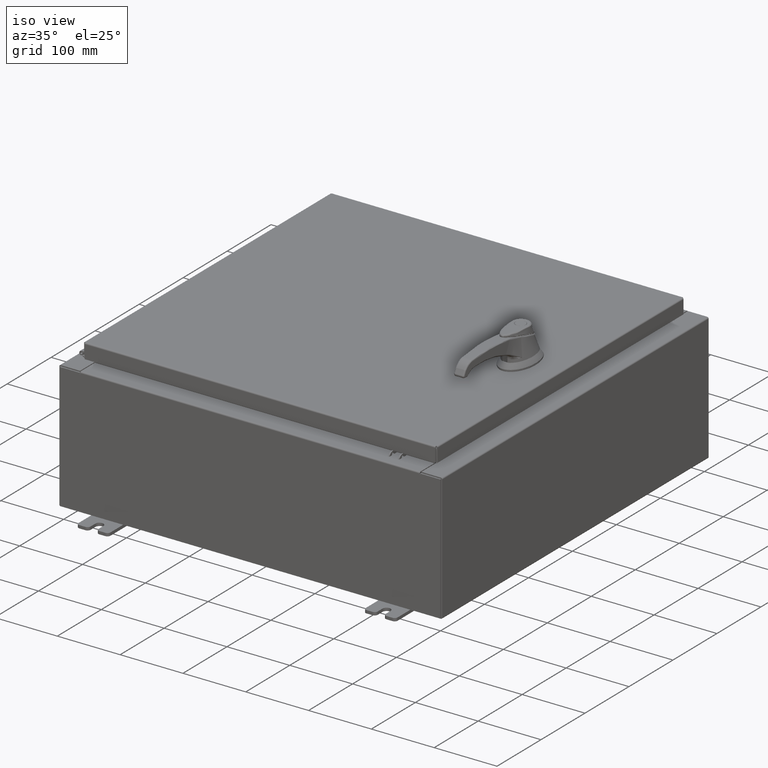
[diagram: clean part render]
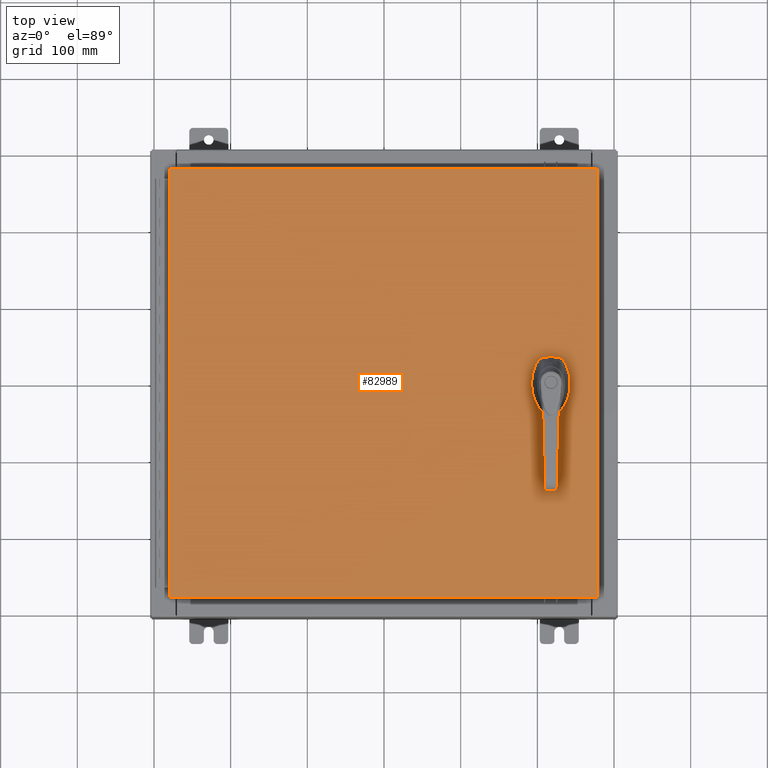
[diagram: tour spotlight — one face highlighted and labeled with its STEP entity id]
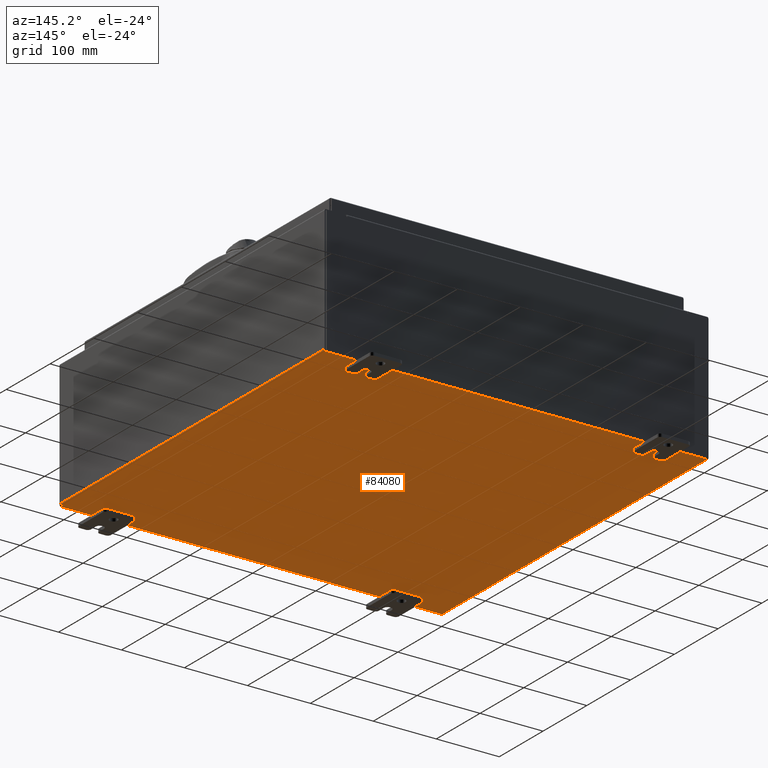
[diagram: tour spotlight — one face highlighted and labeled with its STEP entity id]
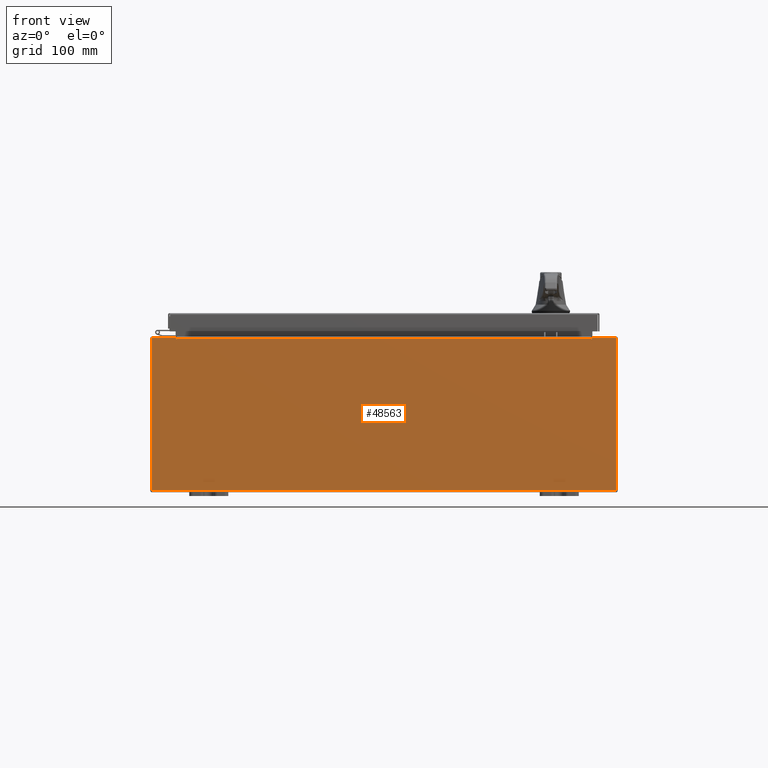
[diagram: tour spotlight — one face highlighted and labeled with its STEP entity id]
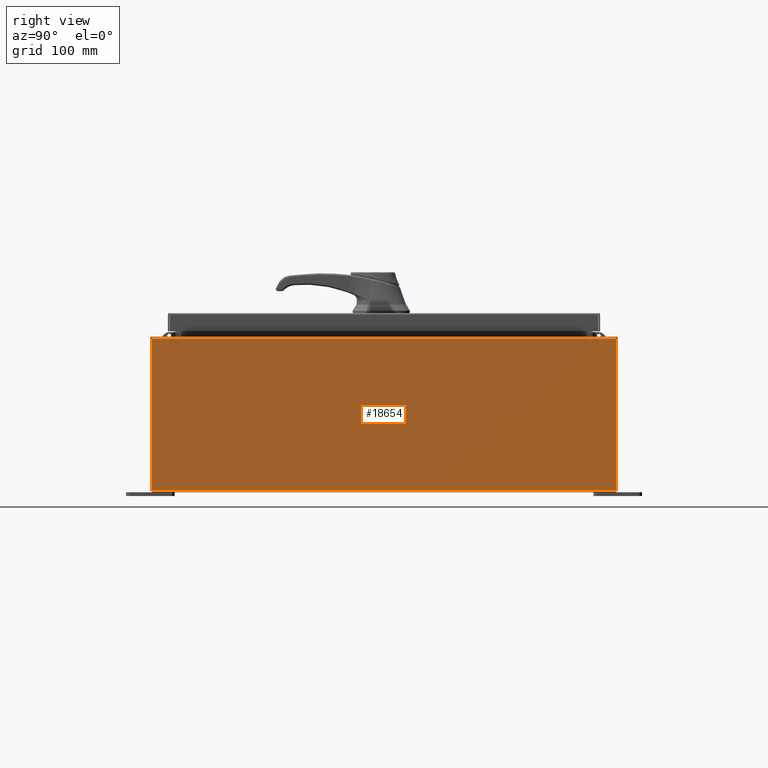
[diagram: tour spotlight — one face highlighted and labeled with its STEP entity id]
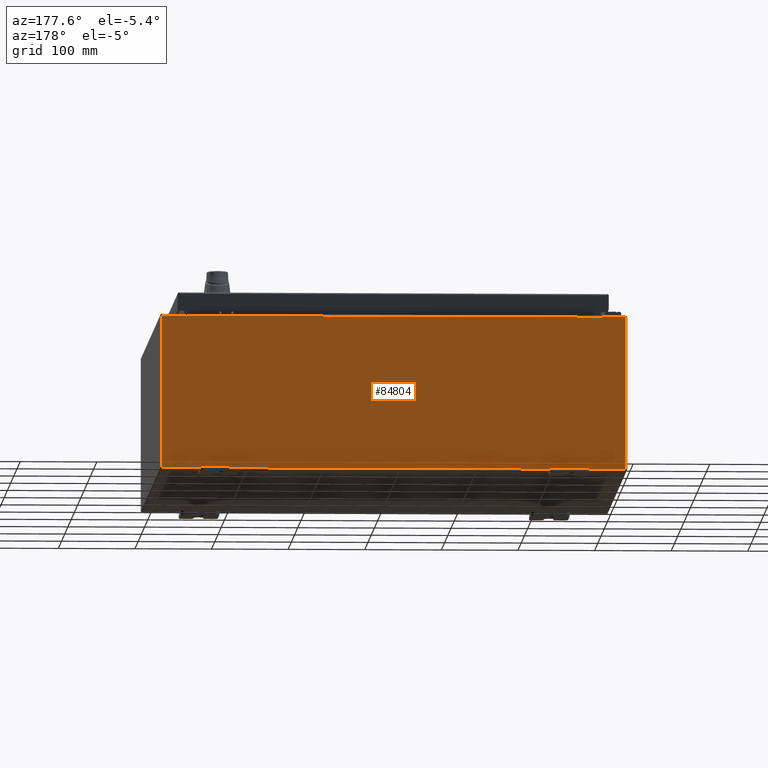
[diagram: tour spotlight — one face highlighted and labeled with its STEP entity id]
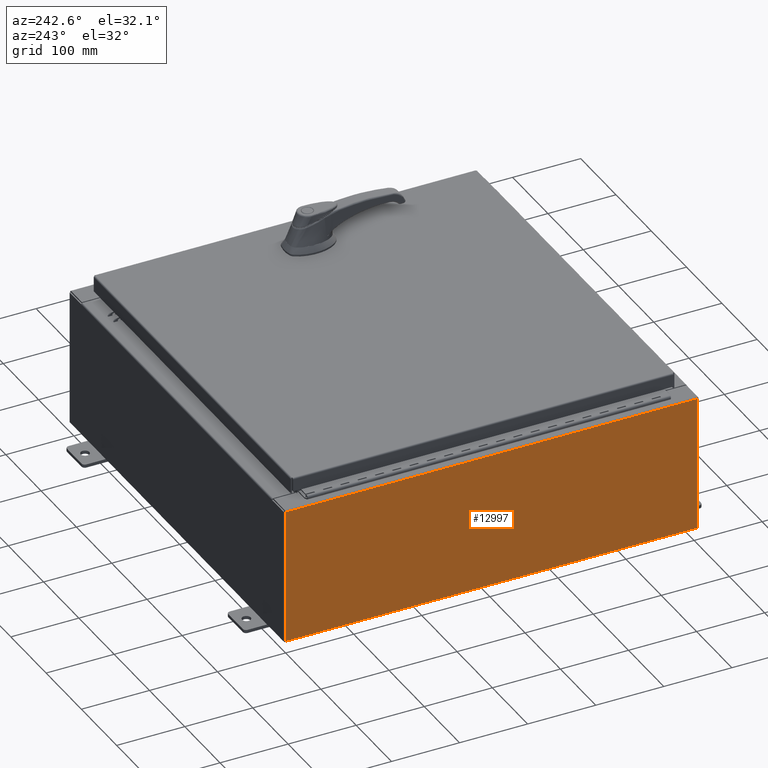
[diagram: tour spotlight — one face highlighted and labeled with its STEP entity id]
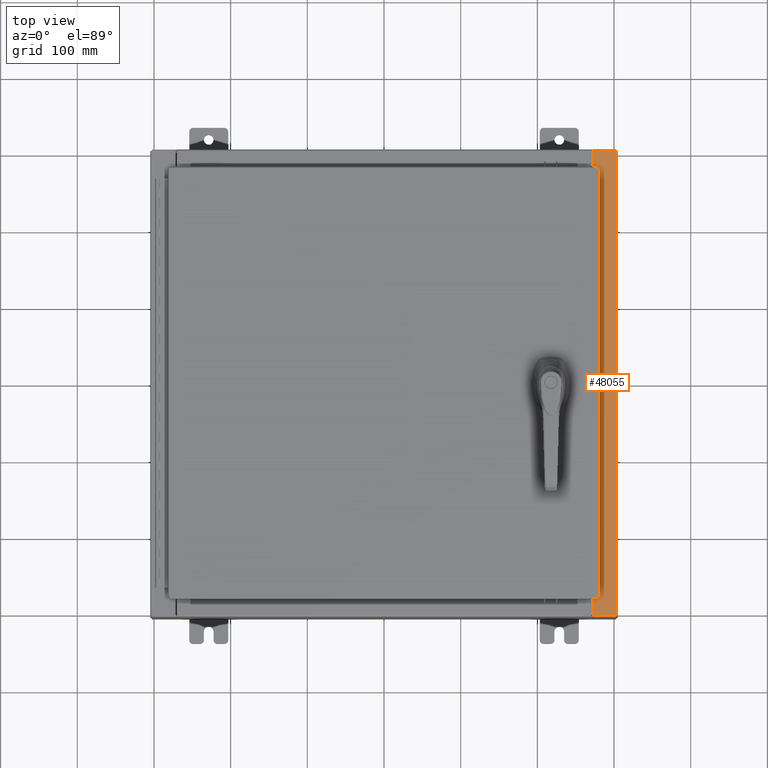
[diagram: tour spotlight — one face highlighted and labeled with its STEP entity id]
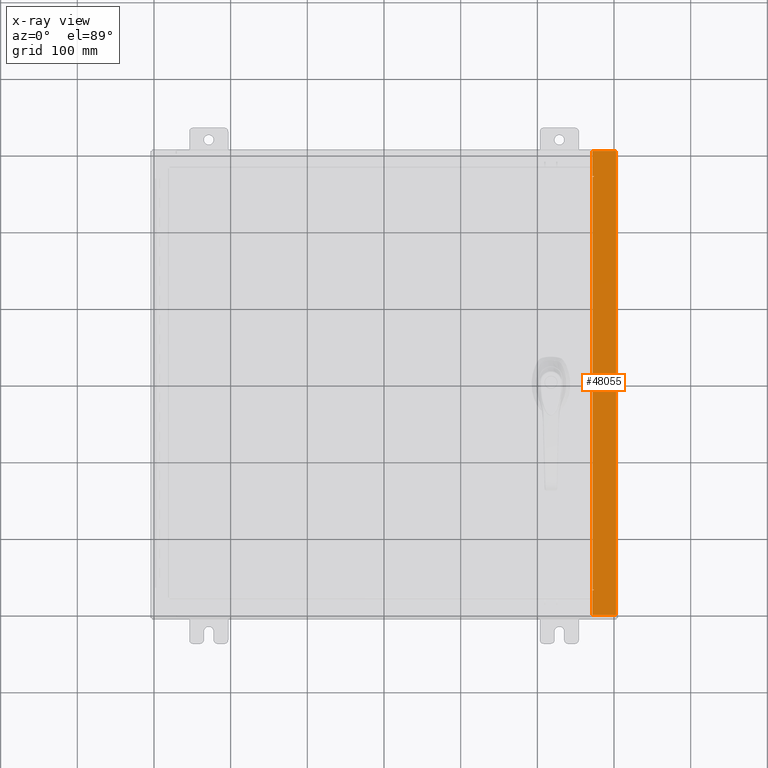
[diagram: x-ray of the same camera — body ghosted, this tour face saturated]
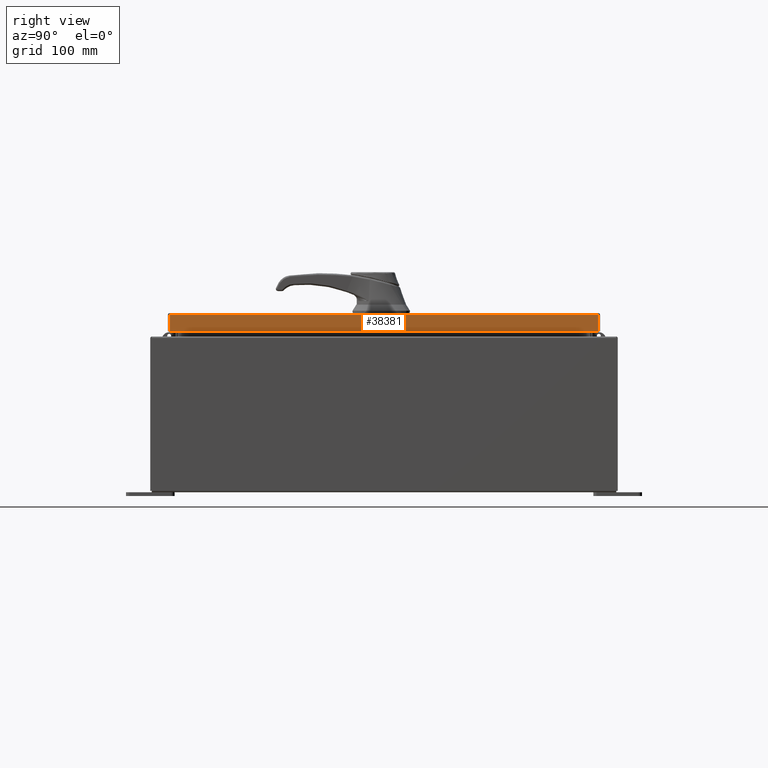
[diagram: tour spotlight — one face highlighted and labeled with its STEP entity id]
A machine part: a face-by-face anatomy tour. The part has 2412 B-rep faces; the first image is the clean iso view, then the 8 largest visible faces are spotlighted one at a time (largest first), each with its STEP entity span.

Face 1 — top view, entity #82989. In plain terms, the highlighted planar face has unit normal (0, 0, -1).
Definition (entity closure, byte-faithful):
#17 = VERTEX_POINT ( 'NONE', #100373 ) ;
#72 = CARTESIAN_POINT ( 'NONE',  ( 8.778227370756305000, -0.4029999999999252000, 0.0000000000000000000 ) ) ;
#2747 = DIRECTION ( 'NONE',  ( -0.0000000000000000000, 0.0000000000000000000, 1.000000000000000000 ) ) ;
#4511 = CARTESIAN_POINT ( 'NONE',  ( 8.577999999999995900, 0.0000000000000000000, 0.0000000000000000000 ) ) ;
#4888 = EDGE_CURVE ( 'NONE', #60762, #72169, #53012, .T. ) ;
#4897 = CARTESIAN_POINT ( 'NONE',  ( 0.0000000000000000000, -0.4029999999999252000, 0.0000000000000000000 ) ) ;
#5076 = ORIENTED_EDGE ( 'NONE', *, *, #109431, .F. ) ;
#5107 = DIRECTION ( 'NONE',  ( 0.0000000000000000000, 0.0000000000000000000, -1.000000000000000000 ) ) ;
#5218 = ORIENTED_EDGE ( 'NONE', *, *, #97827, .F. ) ;
#5571 = EDGE_CURVE ( 'NONE', #31665, #10914, #27391, .T. ) ;
#5620 = DIRECTION ( 'NONE',  ( 0.0000000000000000000, -1.000000000000000000, 0.0000000000000000000 ) ) ;
#6612 = FACE_BOUND ( 'NONE', #67794, .T. ) ;
#7065 = ORIENTED_EDGE ( 'NONE', *, *, #71358, .F. ) ;
#7377 = EDGE_CURVE ( 'NONE', #10914, #60762, #96361, .T. ) ;
#9304 = AXIS2_PLACEMENT_3D ( 'NONE', #98998, #47049, #107700 ) ;
#10914 = VERTEX_POINT ( 'NONE', #53206 ) ;
#12145 = VECTOR ( 'NONE', #13840, 39.37007874015748100 ) ;
#12614 = VECTOR ( 'NONE', #14414, 39.37007874015748100 ) ;
#13230 = DIRECTION ( 'NONE',  ( 1.000000000000000000, 0.0000000000000000000, 0.0000000000000000000 ) ) ;
#13595 = DIRECTION ( 'NONE',  ( 1.000000000000000000, 0.0000000000000000000, 0.0000000000000000000 ) ) ;
#13840 = DIRECTION ( 'NONE',  ( -1.000000000000000000, 0.0000000000000000000, 0.0000000000000000000 ) ) ;
#14223 = VECTOR ( 'NONE', #13595, 39.37007874015748100 ) ;
#14414 = DIRECTION ( 'NONE',  ( 1.000000000000000000, -0.0000000000000000000, -0.0000000000000000000 ) ) ;
#15339 = LINE ( 'NONE', #92399, #12614 ) ;
#16343 = CARTESIAN_POINT ( 'NONE',  ( 8.778227370756305000, 0.4029999999999252000, 0.0000000000000000000 ) ) ;
#17821 = ORIENTED_EDGE ( 'NONE', *, *, #7377, .T. ) ;
#17848 = EDGE_CURVE ( 'NONE', #96478, #38070, #83064, .T. ) ;
#19936 = CARTESIAN_POINT ( 'NONE',  ( 8.980999999999921700, -0.2002273707563079800, 0.0000000000000000000 ) ) ;
#21201 = AXIS2_PLACEMENT_3D ( 'NONE', #90916, #38966, #99632 ) ;
#21349 = CIRCLE ( 'NONE', #94854, 0.4499999999999156900 ) ;
#23507 = VERTEX_POINT ( 'NONE', #16343 ) ;
#24815 = DIRECTION ( 'NONE',  ( -1.000000000000000000, -0.0000000000000000000, -0.0000000000000000000 ) ) ;
#27391 = LINE ( 'NONE', #29232, #70776 ) ;
#28290 = CARTESIAN_POINT ( 'NONE',  ( 10.99029999999999600, -11.00630000000000100, -2.048885995248197400E-016 ) ) ;
#28610 = ORIENTED_EDGE ( 'NONE', *, *, #47316, .F. ) ;
#28695 = ORIENTED_EDGE ( 'NONE', *, *, #17848, .F. ) ;
#29226 = CARTESIAN_POINT ( 'NONE',  ( 8.377772629243686700, 0.4029999999999252000, 0.0000000000000000000 ) ) ;
#29228 = CIRCLE ( 'NONE', #80364, 0.4499999999999156900 ) ;
#29232 = CARTESIAN_POINT ( 'NONE',  ( 10.99029999999999600, -11.00630000000000100, -2.048885995248197400E-016 ) ) ;
#29886 = VECTOR ( 'NONE', #24815, 39.37007874015748100 ) ;
#29978 = VECTOR ( 'NONE', #5620, 39.37007874015748100 ) ;
#30014 = CARTESIAN_POINT ( 'NONE',  ( 8.749499999999997600, -1.338000000000000100, 0.0000000000000000000 ) ) ;
#30799 = PLANE ( 'NONE',  #42019 ) ;
#31665 = VERTEX_POINT ( 'NONE', #28290 ) ;
#32412 = VERTEX_POINT ( 'NONE', #30014 ) ;
#34981 = FACE_OUTER_BOUND ( 'NONE', #104175, .T. ) ;
#35000 = CIRCLE ( 'NONE', #21201, 0.1715000000000011500 ) ;
#35624 = CARTESIAN_POINT ( 'NONE',  ( 8.175000000000070000, 0.2002273707563079800, 0.0000000000000000000 ) ) ;
#35879 = EDGE_CURVE ( 'NONE', #23507, #36831, #104298, .T. ) ;
#36091 = ORIENTED_EDGE ( 'NONE', *, *, #43962, .T. ) ;
#36403 = CIRCLE ( 'NONE', #9304, 0.4499999999999156900 ) ;
#36831 = VERTEX_POINT ( 'NONE', #29226 ) ;
#38070 = VERTEX_POINT ( 'NONE', #46725 ) ;
#38939 = CARTESIAN_POINT ( 'NONE',  ( 8.980999999999921700, 2.450686610769031800E-014, 0.0000000000000000000 ) ) ;
#38966 = DIRECTION ( 'NONE',  ( -0.0000000000000000000, 0.0000000000000000000, 1.000000000000000000 ) ) ;
#39149 = DIRECTION ( 'NONE',  ( 0.0000000000000000000, -1.000000000000000000, 0.0000000000000000000 ) ) ;
#39990 = CARTESIAN_POINT ( 'NONE',  ( -10.99030000000000500, 11.00629999999999600, -1.348849946871729900E-015 ) ) ;
#41294 = VERTEX_POINT ( 'NONE', #108617 ) ;
#41713 = CIRCLE ( 'NONE', #47875, 0.1715000000000011500 ) ;
#42019 = AXIS2_PLACEMENT_3D ( 'NONE', #91439, #5107, #65671 ) ;
#42532 = ORIENTED_EDGE ( 'NONE', *, *, #111764, .F. ) ;
#42597 = EDGE_LOOP ( 'NONE', ( #5218, #7065 ) ) ;
#42760 = CARTESIAN_POINT ( 'NONE',  ( 8.577999999999995900, 0.0000000000000000000, 0.0000000000000000000 ) ) ;
#43744 = VERTEX_POINT ( 'NONE', #72 ) ;
#43962 = EDGE_CURVE ( 'NONE', #17, #78891, #101498, .T. ) ;
#46725 = CARTESIAN_POINT ( 'NONE',  ( 8.175000000000070000, -0.2002273707563079800, 0.0000000000000000000 ) ) ;
#47049 = DIRECTION ( 'NONE',  ( -0.0000000000000000000, 0.0000000000000000000, 1.000000000000000000 ) ) ;
#47316 = EDGE_CURVE ( 'NONE', #43744, #78891, #21349, .T. ) ;
#47875 = AXIS2_PLACEMENT_3D ( 'NONE', #54604, #2747, #63321 ) ;
#47878 = CARTESIAN_POINT ( 'NONE',  ( 8.175000000000070000, 0.0000000000000000000, 0.0000000000000000000 ) ) ;
#48553 = ORIENTED_EDGE ( 'NONE', *, *, #103083, .F. ) ;
#49070 = EDGE_CURVE ( 'NONE', #17, #23507, #29228, .T. ) ;
#50112 = DIRECTION ( 'NONE',  ( -0.0000000000000000000, 0.0000000000000000000, 1.000000000000000000 ) ) ;
#51492 = DIRECTION ( 'NONE',  ( 1.000000000000000000, 0.0000000000000000000, 0.0000000000000000000 ) ) ;
#53012 = LINE ( 'NONE', #39990, #29978 ) ;
#53206 = CARTESIAN_POINT ( 'NONE',  ( 10.99029999999999800, 11.00629999999999600, -2.048885995248197400E-016 ) ) ;
#53660 = VECTOR ( 'NONE', #39149, 39.37007874015748100 ) ;
#54604 = CARTESIAN_POINT ( 'NONE',  ( 8.577999999999995900, -1.338000000000000100, 0.0000000000000000000 ) ) ;
#57355 = CARTESIAN_POINT ( 'NONE',  ( 0.0000000000000000000, 0.4029999999999252000, 0.0000000000000000000 ) ) ;
#57582 = CARTESIAN_POINT ( 'NONE',  ( 8.377772629243686700, -0.4029999999999252000, 0.0000000000000000000 ) ) ;
#60762 = VERTEX_POINT ( 'NONE', #96255 ) ;
#62318 = AXIS2_PLACEMENT_3D ( 'NONE', #4511, #65092, #13230 ) ;
#63321 = DIRECTION ( 'NONE',  ( 1.000000000000000000, 0.0000000000000000000, 0.0000000000000000000 ) ) ;
#64526 = CARTESIAN_POINT ( 'NONE',  ( -10.99030000000000000, -11.00630000000000100, -2.048885995248197400E-016 ) ) ;
#65092 = DIRECTION ( 'NONE',  ( -0.0000000000000000000, 0.0000000000000000000, 1.000000000000000000 ) ) ;
#65671 = DIRECTION ( 'NONE',  ( -1.000000000000000000, 0.0000000000000000000, -0.0000000000000000000 ) ) ;
#67794 = EDGE_LOOP ( 'NONE', ( #36091, #28610, #48553, #5076, #28695, #42532, #106213, #89051 ) ) ;
#70776 = VECTOR ( 'NONE', #81106, 39.37007874015748100 ) ;
#71358 = EDGE_CURVE ( 'NONE', #41294, #32412, #35000, .T. ) ;
#72169 = VERTEX_POINT ( 'NONE', #64526 ) ;
#72818 = ORIENTED_EDGE ( 'NONE', *, *, #5571, .T. ) ;
#75654 = FACE_BOUND ( 'NONE', #42597, .T. ) ;
#76673 = CARTESIAN_POINT ( 'NONE',  ( 10.99029999999999800, 11.00629999999999600, -2.048885995248197400E-016 ) ) ;
#78476 = VECTOR ( 'NONE', #90889, 39.37007874015748100 ) ;
#78891 = VERTEX_POINT ( 'NONE', #19936 ) ;
#80364 = AXIS2_PLACEMENT_3D ( 'NONE', #102048, #50112, #110787 ) ;
#80907 = CIRCLE ( 'NONE', #62318, 0.4499999999999156900 ) ;
#81106 = DIRECTION ( 'NONE',  ( 0.0000000000000000000, 1.000000000000000000, 0.0000000000000000000 ) ) ;
#81533 = ORIENTED_EDGE ( 'NONE', *, *, #105406, .T. ) ;
#82989 = ADVANCED_FACE ( 'NONE', ( #75654, #34981, #6612 ), #30799, .F. ) ;
#83064 = LINE ( 'NONE', #47878, #53660 ) ;
#89051 = ORIENTED_EDGE ( 'NONE', *, *, #49070, .F. ) ;
#90889 = DIRECTION ( 'NONE',  ( 2.728745808672812900E-015, -1.000000000000000000, 0.0000000000000000000 ) ) ;
#90916 = CARTESIAN_POINT ( 'NONE',  ( 8.577999999999995900, -1.338000000000000100, 0.0000000000000000000 ) ) ;
#91439 = CARTESIAN_POINT ( 'NONE',  ( 0.0000000000000000000, 0.0000000000000000000, 0.0000000000000000000 ) ) ;
#92399 = CARTESIAN_POINT ( 'NONE',  ( -10.99030000000000000, -11.00630000000000100, -2.048885995248197400E-016 ) ) ;
#94854 = AXIS2_PLACEMENT_3D ( 'NONE', #42760, #103438, #51492 ) ;
#96255 = CARTESIAN_POINT ( 'NONE',  ( -10.99030000000000500, 11.00629999999999600, -1.348849946871729900E-015 ) ) ;
#96361 = LINE ( 'NONE', #76673, #29886 ) ;
#96478 = VERTEX_POINT ( 'NONE', #35624 ) ;
#96997 = VERTEX_POINT ( 'NONE', #57582 ) ;
#97827 = EDGE_CURVE ( 'NONE', #32412, #41294, #41713, .T. ) ;
#98998 = CARTESIAN_POINT ( 'NONE',  ( 8.577999999999995900, 0.0000000000000000000, 0.0000000000000000000 ) ) ;
#99632 = DIRECTION ( 'NONE',  ( 1.000000000000000000, 0.0000000000000000000, 0.0000000000000000000 ) ) ;
#100373 = CARTESIAN_POINT ( 'NONE',  ( 8.980999999999921700, 0.2002273707563080300, 0.0000000000000000000 ) ) ;
#101498 = LINE ( 'NONE', #38939, #78476 ) ;
#102048 = CARTESIAN_POINT ( 'NONE',  ( 8.577999999999995900, 0.0000000000000000000, 0.0000000000000000000 ) ) ;
#103083 = EDGE_CURVE ( 'NONE', #96997, #43744, #106356, .T. ) ;
#103438 = DIRECTION ( 'NONE',  ( -0.0000000000000000000, 0.0000000000000000000, 1.000000000000000000 ) ) ;
#104175 = EDGE_LOOP ( 'NONE', ( #81533, #72818, #17821, #107211 ) ) ;
#104298 = LINE ( 'NONE', #57355, #12145 ) ;
#105406 = EDGE_CURVE ( 'NONE', #72169, #31665, #15339, .T. ) ;
#106213 = ORIENTED_EDGE ( 'NONE', *, *, #35879, .F. ) ;
#106356 = LINE ( 'NONE', #4897, #14223 ) ;
#107211 = ORIENTED_EDGE ( 'NONE', *, *, #4888, .T. ) ;
#107700 = DIRECTION ( 'NONE',  ( 1.000000000000000000, 0.0000000000000000000, 0.0000000000000000000 ) ) ;
#108617 = CARTESIAN_POINT ( 'NONE',  ( 8.406499999999994100, -1.338000000000000100, 0.0000000000000000000 ) ) ;
#109431 = EDGE_CURVE ( 'NONE', #38070, #96997, #36403, .T. ) ;
#110787 = DIRECTION ( 'NONE',  ( 1.000000000000000000, 0.0000000000000000000, 0.0000000000000000000 ) ) ;
#111764 = EDGE_CURVE ( 'NONE', #36831, #96478, #80907, .T. ) ;

Face 2 — auxiliary view, entity #84080. In plain terms, the highlighted planar face has unit normal (0, 0, -1).
Definition (entity closure, byte-faithful):
#1530 = CARTESIAN_POINT ( 'NONE',  ( -11.91230000000000400, 11.92529999999999800, -0.07470000000000000300 ) ) ;
#1544 = CARTESIAN_POINT ( 'NONE',  ( -12.00000000000000400, 11.92529999999999800, -0.07470000000000000300 ) ) ;
#4742 = ORIENTED_EDGE ( 'NONE', *, *, #21338, .T. ) ;
#7571 = DIRECTION ( 'NONE',  ( -0.0000000000000000000, 1.000000000000000000, -0.0000000000000000000 ) ) ;
#10327 = VERTEX_POINT ( 'NONE', #34439 ) ;
#12642 = VECTOR ( 'NONE', #29537, 39.37007874015748100 ) ;
#18860 = EDGE_CURVE ( 'NONE', #88184, #109908, #111886, .T. ) ;
#19294 = EDGE_LOOP ( 'NONE', ( #79196, #23154, #25258, #4742 ) ) ;
#21338 = EDGE_CURVE ( 'NONE', #88184, #10327, #38301, .T. ) ;
#22889 = VECTOR ( 'NONE', #7571, 39.37007874015748100 ) ;
#23154 = ORIENTED_EDGE ( 'NONE', *, *, #71200, .T. ) ;
#24744 = CARTESIAN_POINT ( 'NONE',  ( -11.91230000000000400, -11.92530000000000000, -0.07469999999999994700 ) ) ;
#25258 = ORIENTED_EDGE ( 'NONE', *, *, #18860, .F. ) ;
#26166 = PLANE ( 'NONE',  #101651 ) ;
#29537 = DIRECTION ( 'NONE',  ( -0.0000000000000000000, -1.000000000000000000, -0.0000000000000000000 ) ) ;
#34439 = CARTESIAN_POINT ( 'NONE',  ( 11.91229999999998900, -11.92530000000000400, -0.07470000000000000300 ) ) ;
#35507 = EDGE_CURVE ( 'NONE', #89356, #10327, #79920, .T. ) ;
#36149 = FACE_OUTER_BOUND ( 'NONE', #19294, .T. ) ;
#38301 = LINE ( 'NONE', #72735, #12642 ) ;
#43502 = CARTESIAN_POINT ( 'NONE',  ( 0.0000000000000000000, 0.0000000000000000000, -0.07470000000000000300 ) ) ;
#52231 = DIRECTION ( 'NONE',  ( -1.000000000000000000, 0.0000000000000000000, -0.0000000000000000000 ) ) ;
#56877 = VECTOR ( 'NONE', #112049, 39.37007874015748100 ) ;
#59040 = CARTESIAN_POINT ( 'NONE',  ( 11.91229999999999800, 11.92529999999999600, -0.07469999999999994700 ) ) ;
#60120 = CARTESIAN_POINT ( 'NONE',  ( -12.00000000000000400, -11.92530000000000400, -0.07470000000000000300 ) ) ;
#62100 = DIRECTION ( 'NONE',  ( -1.000000000000000000, -0.0000000000000000000, -0.0000000000000000000 ) ) ;
#65758 = VECTOR ( 'NONE', #62100, 39.37007874015748100 ) ;
#71200 = EDGE_CURVE ( 'NONE', #89356, #109908, #92002, .T. ) ;
#72735 = CARTESIAN_POINT ( 'NONE',  ( 11.91229999999999800, 11.92529999999999800, -0.07469999999999994700 ) ) ;
#79196 = ORIENTED_EDGE ( 'NONE', *, *, #35507, .F. ) ;
#79920 = LINE ( 'NONE', #60120, #56877 ) ;
#84080 = ADVANCED_FACE ( 'NONE', ( #36149 ), #26166, .T. ) ;
#88184 = VERTEX_POINT ( 'NONE', #59040 ) ;
#89356 = VERTEX_POINT ( 'NONE', #24744 ) ;
#92002 = LINE ( 'NONE', #102592, #22889 ) ;
#101651 = AXIS2_PLACEMENT_3D ( 'NONE', #43502, #104173, #52231 ) ;
#102592 = CARTESIAN_POINT ( 'NONE',  ( -11.91230000000000400, -11.92530000000000400, -0.07469999999999994700 ) ) ;
#104173 = DIRECTION ( 'NONE',  ( 0.0000000000000000000, 0.0000000000000000000, -1.000000000000000000 ) ) ;
#109908 = VERTEX_POINT ( 'NONE', #1530 ) ;
#111886 = LINE ( 'NONE', #1544, #65758 ) ;
#112049 = DIRECTION ( 'NONE',  ( 1.000000000000000000, 0.0000000000000000000, 0.0000000000000000000 ) ) ;

Face 3 — front view, entity #48563. In plain terms, the highlighted planar face has unit normal (-0, 1, -0).
Definition (entity closure, byte-faithful):
#4001 = DIRECTION ( 'NONE',  ( -4.340572780400004900E-014, 0.0000000000000000000, -1.000000000000000000 ) ) ;
#7316 = LINE ( 'NONE', #78069, #30272 ) ;
#7573 = DIRECTION ( 'NONE',  ( -0.0000000000000000000, 1.000000000000000000, -0.0000000000000000000 ) ) ;
#10491 = VECTOR ( 'NONE', #93682, 39.37007874015748100 ) ;
#11148 = VECTOR ( 'NONE', #4001, 39.37007874015748100 ) ;
#13411 = VECTOR ( 'NONE', #99230, 39.37007874015748100 ) ;
#13547 = VECTOR ( 'NONE', #54502, 39.37007874015748100 ) ;
#13616 = VERTEX_POINT ( 'NONE', #76072 ) ;
#15529 = CARTESIAN_POINT ( 'NONE',  ( 10.67455000000000200, 0.0000000000000000000, 3.874949999999999700 ) ) ;
#15680 = CARTESIAN_POINT ( 'NONE',  ( 10.63720000000000400, 0.0000000000000000000, 0.0000000000000000000 ) ) ;
#15906 = LINE ( 'NONE', #37791, #64660 ) ;
#16835 = VERTEX_POINT ( 'NONE', #111828 ) ;
#17496 = DIRECTION ( 'NONE',  ( -0.0000000000000000000, -0.0000000000000000000, 1.000000000000000000 ) ) ;
#18712 = VERTEX_POINT ( 'NONE', #32973 ) ;
#20838 = DIRECTION ( 'NONE',  ( 1.000000000000000000, 0.0000000000000000000, 0.0000000000000000000 ) ) ;
#21033 = ORIENTED_EDGE ( 'NONE', *, *, #78209, .T. ) ;
#21880 = CARTESIAN_POINT ( 'NONE',  ( -11.92530000000000000, 0.0000000000000000000, 3.925299999999999600 ) ) ;
#22963 = CARTESIAN_POINT ( 'NONE',  ( 0.0000000000000000000, 0.0000000000000000000, 0.0000000000000000000 ) ) ;
#23685 = ORIENTED_EDGE ( 'NONE', *, *, #79052, .F. ) ;
#26764 = VERTEX_POINT ( 'NONE', #54703 ) ;
#26898 = ORIENTED_EDGE ( 'NONE', *, *, #84148, .F. ) ;
#30106 = CARTESIAN_POINT ( 'NONE',  ( 10.67454999999983300, -0.0000000000000000000, -4.633366117301815000E-013 ) ) ;
#30133 = DIRECTION ( 'NONE',  ( 0.0000000000000000000, 0.0000000000000000000, -1.000000000000000000 ) ) ;
#30272 = VECTOR ( 'NONE', #17496, 39.37007874015748100 ) ;
#30713 = EDGE_CURVE ( 'NONE', #48867, #75089, #85892, .T. ) ;
#31102 = LINE ( 'NONE', #106400, #13547 ) ;
#32973 = CARTESIAN_POINT ( 'NONE',  ( -10.67455000000000200, 0.0000000000000000000, 3.925299999999999600 ) ) ;
#33317 = ORIENTED_EDGE ( 'NONE', *, *, #45613, .F. ) ;
#34274 = CARTESIAN_POINT ( 'NONE',  ( 11.92530000000000000, 0.0000000000000000000, 3.925299999999999600 ) ) ;
#34959 = LINE ( 'NONE', #34274, #52582 ) ;
#36051 = FACE_OUTER_BOUND ( 'NONE', #108864, .T. ) ;
#37791 = CARTESIAN_POINT ( 'NONE',  ( -11.92530000000000000, 0.0000000000000000000, 3.925299999999999600 ) ) ;
#39217 = ORIENTED_EDGE ( 'NONE', *, *, #104716, .T. ) ;
#39948 = ORIENTED_EDGE ( 'NONE', *, *, #93331, .T. ) ;
#40296 = PLANE ( 'NONE',  #65127 ) ;
#40335 = EDGE_CURVE ( 'NONE', #63173, #26764, #45564, .T. ) ;
#42944 = DIRECTION ( 'NONE',  ( 0.0000000000000000000, 0.0000000000000000000, -1.000000000000000000 ) ) ;
#43362 = CARTESIAN_POINT ( 'NONE',  ( -10.65587500000000200, 0.0000000000000000000, 3.874949999999999700 ) ) ;
#43558 = LINE ( 'NONE', #82020, #110042 ) ;
#45439 = ORIENTED_EDGE ( 'NONE', *, *, #90840, .F. ) ;
#45564 = LINE ( 'NONE', #21880, #88958 ) ;
#45613 = EDGE_CURVE ( 'NONE', #75089, #18712, #59473, .T. ) ;
#48563 = ADVANCED_FACE ( 'NONE', ( #36051 ), #40296, .F. ) ;
#48867 = VERTEX_POINT ( 'NONE', #74044 ) ;
#49025 = DIRECTION ( 'NONE',  ( 0.0000000000000000000, -0.0000000000000000000, -1.000000000000000000 ) ) ;
#52091 = DIRECTION ( 'NONE',  ( 0.0000000000000000000, 0.0000000000000000000, -1.000000000000000000 ) ) ;
#52582 = VECTOR ( 'NONE', #42944, 39.37007874015748100 ) ;
#53141 = CARTESIAN_POINT ( 'NONE',  ( -11.92530000000000000, 0.0000000000000000000, -3.925299999999999600 ) ) ;
#54502 = DIRECTION ( 'NONE',  ( 1.000000000000000000, 0.0000000000000000000, 0.0000000000000000000 ) ) ;
#54703 = CARTESIAN_POINT ( 'NONE',  ( 11.92530000000000000, 0.0000000000000000000, 3.925299999999999600 ) ) ;
#55275 = CARTESIAN_POINT ( 'NONE',  ( -10.67455000000000200, -0.0000000000000000000, 0.0000000000000000000 ) ) ;
#56340 = AXIS2_PLACEMENT_3D ( 'NONE', #43362, #104035, #52091 ) ;
#57122 = EDGE_CURVE ( 'NONE', #13616, #18712, #15906, .T. ) ;
#59417 = CARTESIAN_POINT ( 'NONE',  ( 10.65587500000000200, 0.0000000000000000000, 3.874949999999999700 ) ) ;
#59473 = LINE ( 'NONE', #55275, #13411 ) ;
#62629 = VERTEX_POINT ( 'NONE', #91758 ) ;
#63173 = VERTEX_POINT ( 'NONE', #71830 ) ;
#64660 = VECTOR ( 'NONE', #20838, 39.37007874015748100 ) ;
#65127 = AXIS2_PLACEMENT_3D ( 'NONE', #22963, #100954, #49025 ) ;
#68137 = DIRECTION ( 'NONE',  ( 0.0000000000000000000, 0.0000000000000000000, -1.000000000000000000 ) ) ;
#68445 = VERTEX_POINT ( 'NONE', #75218 ) ;
#71830 = CARTESIAN_POINT ( 'NONE',  ( 10.67455000000000200, 0.0000000000000000000, 3.925299999999999600 ) ) ;
#72184 = LINE ( 'NONE', #76431, #92559 ) ;
#73774 = ORIENTED_EDGE ( 'NONE', *, *, #82347, .F. ) ;
#74044 = CARTESIAN_POINT ( 'NONE',  ( -10.63720000000000400, -0.0000000000000000000, 3.874949999999999700 ) ) ;
#75089 = VERTEX_POINT ( 'NONE', #76195 ) ;
#75218 = CARTESIAN_POINT ( 'NONE',  ( -10.63720000000000400, 1.024442997624098700E-016, 3.912299999999999700 ) ) ;
#76072 = CARTESIAN_POINT ( 'NONE',  ( -11.92530000000000000, 0.0000000000000000000, 3.925299999999999600 ) ) ;
#76195 = CARTESIAN_POINT ( 'NONE',  ( -10.67455000000000200, 0.0000000000000000000, 3.874949999999999700 ) ) ;
#76431 = CARTESIAN_POINT ( 'NONE',  ( -11.92530000000000000, 0.0000000000000000000, -3.925299999999999600 ) ) ;
#78069 = CARTESIAN_POINT ( 'NONE',  ( -11.92530000000000000, 0.0000000000000000000, 3.925299999999999600 ) ) ;
#78209 = EDGE_CURVE ( 'NONE', #62629, #107954, #72184, .T. ) ;
#79052 = EDGE_CURVE ( 'NONE', #63173, #102080, #82941, .T. ) ;
#81482 = EDGE_CURVE ( 'NONE', #26764, #62629, #34959, .T. ) ;
#82020 = CARTESIAN_POINT ( 'NONE',  ( -10.63720000000000400, -0.0000000000000000000, 0.0000000000000000000 ) ) ;
#82347 = EDGE_CURVE ( 'NONE', #102080, #16835, #104033, .T. ) ;
#82941 = LINE ( 'NONE', #30106, #11148 ) ;
#84148 = EDGE_CURVE ( 'NONE', #16835, #96298, #102634, .T. ) ;
#84866 = ORIENTED_EDGE ( 'NONE', *, *, #81482, .T. ) ;
#85027 = DIRECTION ( 'NONE',  ( 1.000000000000000000, 0.0000000000000000000, 0.0000000000000000000 ) ) ;
#85112 = DIRECTION ( 'NONE',  ( -1.000000000000000000, -0.0000000000000000000, -0.0000000000000000000 ) ) ;
#85892 = CIRCLE ( 'NONE', #56340, 0.01867499999999949400 ) ;
#87784 = ORIENTED_EDGE ( 'NONE', *, *, #57122, .T. ) ;
#88958 = VECTOR ( 'NONE', #85027, 39.37007874015748100 ) ;
#90761 = ORIENTED_EDGE ( 'NONE', *, *, #30713, .F. ) ;
#90840 = EDGE_CURVE ( 'NONE', #68445, #48867, #43558, .T. ) ;
#91758 = CARTESIAN_POINT ( 'NONE',  ( 11.92530000000000000, 0.0000000000000000000, -3.925299999999999600 ) ) ;
#92172 = CARTESIAN_POINT ( 'NONE',  ( 10.63720000000000400, 0.0000000000000000000, 3.912299999999999700 ) ) ;
#92559 = VECTOR ( 'NONE', #85112, 39.37007874015748100 ) ;
#93331 = EDGE_CURVE ( 'NONE', #68445, #96298, #31102, .T. ) ;
#93682 = DIRECTION ( 'NONE',  ( 0.0000000000000000000, 0.0000000000000000000, 1.000000000000000000 ) ) ;
#96298 = VERTEX_POINT ( 'NONE', #92172 ) ;
#98676 = AXIS2_PLACEMENT_3D ( 'NONE', #59417, #7573, #68137 ) ;
#99230 = DIRECTION ( 'NONE',  ( 0.0000000000000000000, 0.0000000000000000000, 1.000000000000000000 ) ) ;
#100954 = DIRECTION ( 'NONE',  ( 0.0000000000000000000, -1.000000000000000000, 0.0000000000000000000 ) ) ;
#102080 = VERTEX_POINT ( 'NONE', #15529 ) ;
#102634 = LINE ( 'NONE', #15680, #10491 ) ;
#104033 = CIRCLE ( 'NONE', #98676, 0.01867499999999949400 ) ;
#104035 = DIRECTION ( 'NONE',  ( -0.0000000000000000000, 1.000000000000000000, -0.0000000000000000000 ) ) ;
#104716 = EDGE_CURVE ( 'NONE', #107954, #13616, #7316, .T. ) ;
#105824 = ORIENTED_EDGE ( 'NONE', *, *, #40335, .T. ) ;
#106400 = CARTESIAN_POINT ( 'NONE',  ( -10.63720000000000400, 1.024442997624098700E-016, 3.912299999999999700 ) ) ;
#107954 = VERTEX_POINT ( 'NONE', #53141 ) ;
#108864 = EDGE_LOOP ( 'NONE', ( #33317, #90761, #45439, #39948, #26898, #73774, #23685, #105824, #84866, #21033, #39217, #87784 ) ) ;
#110042 = VECTOR ( 'NONE', #30133, 39.37007874015748100 ) ;
#111828 = CARTESIAN_POINT ( 'NONE',  ( 10.63720000000000400, 0.0000000000000000000, 3.874949999999999700 ) ) ;

Face 4 — right view, entity #18654. In plain terms, the highlighted planar face has unit normal (-1, 0, 0).
Definition (entity closure, byte-faithful):
#2417 = ORIENTED_EDGE ( 'NONE', *, *, #41132, .T. ) ;
#2858 = ORIENTED_EDGE ( 'NONE', *, *, #39344, .F. ) ;
#4909 = LINE ( 'NONE', #37735, #65853 ) ;
#4965 = ORIENTED_EDGE ( 'NONE', *, *, #95152, .T. ) ;
#5622 = VECTOR ( 'NONE', #47044, 39.37007874015748100 ) ;
#6544 = DIRECTION ( 'NONE',  ( -1.000000000000000000, 0.0000000000000000000, 3.584876173029202900E-015 ) ) ;
#6951 = LINE ( 'NONE', #107561, #73277 ) ;
#7853 = VECTOR ( 'NONE', #53709, 39.37007874015748100 ) ;
#14059 = ORIENTED_EDGE ( 'NONE', *, *, #94628, .T. ) ;
#16647 = VERTEX_POINT ( 'NONE', #47735 ) ;
#18640 = VERTEX_POINT ( 'NONE', #109915 ) ;
#18654 = ADVANCED_FACE ( 'NONE', ( #35932 ), #110288, .F. ) ;
#32120 = CARTESIAN_POINT ( 'NONE',  ( 12.00000000000003000, 11.92529999999999600, 7.837599999999992100 ) ) ;
#33530 = LINE ( 'NONE', #44978, #7853 ) ;
#35932 = FACE_OUTER_BOUND ( 'NONE', #44281, .T. ) ;
#37735 = CARTESIAN_POINT ( 'NONE',  ( 12.00000000000003000, 11.92529999999999800, 7.837599999999992100 ) ) ;
#39344 = EDGE_CURVE ( 'NONE', #16647, #18640, #33530, .T. ) ;
#41132 = EDGE_CURVE ( 'NONE', #105160, #72573, #4909, .T. ) ;
#44281 = EDGE_LOOP ( 'NONE', ( #2417, #4965, #2858, #14059 ) ) ;
#44978 = CARTESIAN_POINT ( 'NONE',  ( 11.99999999999999800, -11.92530000000000400, 0.01299999999999984700 ) ) ;
#46459 = DIRECTION ( 'NONE',  ( -0.0000000000000000000, -1.000000000000000000, -0.0000000000000000000 ) ) ;
#47044 = DIRECTION ( 'NONE',  ( 3.584876173029202900E-015, 0.0000000000000000000, 1.000000000000000000 ) ) ;
#47735 = CARTESIAN_POINT ( 'NONE',  ( 11.99999999999999800, 11.92529999999999600, 0.01299999999999984700 ) ) ;
#53709 = DIRECTION ( 'NONE',  ( -0.0000000000000000000, -1.000000000000000000, -0.0000000000000000000 ) ) ;
#55640 = DIRECTION ( 'NONE',  ( -3.584876173029202900E-015, 0.0000000000000000000, -1.000000000000000000 ) ) ;
#64464 = AXIS2_PLACEMENT_3D ( 'NONE', #92855, #6544, #67096 ) ;
#64813 = CARTESIAN_POINT ( 'NONE',  ( 12.00000000000002700, -11.92530000000000400, 7.837599999999998300 ) ) ;
#65853 = VECTOR ( 'NONE', #46459, 39.37007874015748100 ) ;
#67096 = DIRECTION ( 'NONE',  ( 3.584876173029202900E-015, 0.0000000000000000000, 1.000000000000000000 ) ) ;
#72573 = VERTEX_POINT ( 'NONE', #64813 ) ;
#73277 = VECTOR ( 'NONE', #55640, 39.37007874015748100 ) ;
#77422 = LINE ( 'NONE', #107696, #5622 ) ;
#92855 = CARTESIAN_POINT ( 'NONE',  ( 11.99999999999999800, 0.0000000000000000000, -4.327932773236200600E-014 ) ) ;
#94628 = EDGE_CURVE ( 'NONE', #16647, #105160, #77422, .T. ) ;
#95152 = EDGE_CURVE ( 'NONE', #72573, #18640, #6951, .T. ) ;
#105160 = VERTEX_POINT ( 'NONE', #32120 ) ;
#107561 = CARTESIAN_POINT ( 'NONE',  ( 11.99999999999999800, -11.92530000000000400, -4.327932773236200600E-014 ) ) ;
#107696 = CARTESIAN_POINT ( 'NONE',  ( 11.99999999999999800, 11.92529999999999800, -4.327932773236200600E-014 ) ) ;
#109915 = CARTESIAN_POINT ( 'NONE',  ( 11.99999999999999800, -11.92530000000000400, 0.01299999999999983600 ) ) ;
#110288 = PLANE ( 'NONE',  #64464 ) ;

Face 5 — auxiliary view, entity #84804. In plain terms, the highlighted planar face has unit normal (0, -1, 0).
Definition (entity closure, byte-faithful):
#459 = CARTESIAN_POINT ( 'NONE',  ( 11.92530000000000000, 0.0000000000000000000, 3.925299999999999600 ) ) ;
#1914 = ORIENTED_EDGE ( 'NONE', *, *, #104747, .T. ) ;
#4022 = EDGE_CURVE ( 'NONE', #92746, #24437, #7141, .T. ) ;
#4569 = LINE ( 'NONE', #459, #96732 ) ;
#6393 = FACE_OUTER_BOUND ( 'NONE', #48070, .T. ) ;
#6849 = DIRECTION ( 'NONE',  ( -1.000000000000000000, -0.0000000000000000000, -0.0000000000000000000 ) ) ;
#6870 = VECTOR ( 'NONE', #98976, 39.37007874015748100 ) ;
#7141 = LINE ( 'NONE', #82160, #108707 ) ;
#7224 = PLANE ( 'NONE',  #85713 ) ;
#7249 = EDGE_CURVE ( 'NONE', #56918, #23254, #55646, .T. ) ;
#7397 = CIRCLE ( 'NONE', #24774, 0.01867499999999949400 ) ;
#7807 = DIRECTION ( 'NONE',  ( 0.0000000000000000000, 0.0000000000000000000, 1.000000000000000000 ) ) ;
#11396 = CIRCLE ( 'NONE', #17769, 0.01867499999999949400 ) ;
#12326 = EDGE_CURVE ( 'NONE', #79056, #24437, #56426, .T. ) ;
#14159 = EDGE_CURVE ( 'NONE', #82104, #72772, #90249, .T. ) ;
#14629 = CARTESIAN_POINT ( 'NONE',  ( -10.63720000000000400, 1.024442997624098700E-016, 3.912299999999999700 ) ) ;
#14715 = VERTEX_POINT ( 'NONE', #56750 ) ;
#15925 = DIRECTION ( 'NONE',  ( 0.0000000000000000000, -1.000000000000000000, 0.0000000000000000000 ) ) ;
#16376 = EDGE_CURVE ( 'NONE', #23254, #79056, #7397, .T. ) ;
#17769 = AXIS2_PLACEMENT_3D ( 'NONE', #29988, #90612, #38675 ) ;
#18342 = LINE ( 'NONE', #89688, #38547 ) ;
#22156 = CARTESIAN_POINT ( 'NONE',  ( 10.63720000000000400, 0.0000000000000000000, 3.912299999999999700 ) ) ;
#23254 = VERTEX_POINT ( 'NONE', #42481 ) ;
#23705 = DIRECTION ( 'NONE',  ( -4.340572780400004900E-014, 0.0000000000000000000, -1.000000000000000000 ) ) ;
#24437 = VERTEX_POINT ( 'NONE', #22156 ) ;
#24774 = AXIS2_PLACEMENT_3D ( 'NONE', #97821, #45858, #106494 ) ;
#29670 = ORIENTED_EDGE ( 'NONE', *, *, #86817, .T. ) ;
#29988 = CARTESIAN_POINT ( 'NONE',  ( -10.65587500000000200, 0.0000000000000000000, 3.874949999999999700 ) ) ;
#31660 = ORIENTED_EDGE ( 'NONE', *, *, #14159, .F. ) ;
#32763 = ORIENTED_EDGE ( 'NONE', *, *, #108236, .F. ) ;
#33258 = VECTOR ( 'NONE', #36963, 39.37007874015748100 ) ;
#36959 = VERTEX_POINT ( 'NONE', #75030 ) ;
#36963 = DIRECTION ( 'NONE',  ( 1.000000000000000000, 0.0000000000000000000, 0.0000000000000000000 ) ) ;
#38547 = VECTOR ( 'NONE', #46484, 39.37007874015748100 ) ;
#38675 = DIRECTION ( 'NONE',  ( 0.0000000000000000000, 0.0000000000000000000, -1.000000000000000000 ) ) ;
#39642 = VECTOR ( 'NONE', #6849, 39.37007874015748100 ) ;
#42056 = DIRECTION ( 'NONE',  ( 1.000000000000000000, 0.0000000000000000000, 0.0000000000000000000 ) ) ;
#42481 = CARTESIAN_POINT ( 'NONE',  ( 10.67455000000000200, 0.0000000000000000000, 3.874949999999999700 ) ) ;
#44572 = ORIENTED_EDGE ( 'NONE', *, *, #86128, .T. ) ;
#45858 = DIRECTION ( 'NONE',  ( -0.0000000000000000000, 1.000000000000000000, -0.0000000000000000000 ) ) ;
#46484 = DIRECTION ( 'NONE',  ( 1.000000000000000000, 0.0000000000000000000, 0.0000000000000000000 ) ) ;
#46854 = VECTOR ( 'NONE', #7807, 39.37007874015748100 ) ;
#47839 = ORIENTED_EDGE ( 'NONE', *, *, #16376, .F. ) ;
#48070 = EDGE_LOOP ( 'NONE', ( #31660, #94810, #32763, #103435, #94522, #47839, #90867, #29670, #1914, #49743, #71201, #44572 ) ) ;
#49743 = ORIENTED_EDGE ( 'NONE', *, *, #52315, .T. ) ;
#49915 = CARTESIAN_POINT ( 'NONE',  ( -11.92530000000000000, 0.0000000000000000000, -3.925299999999999600 ) ) ;
#52261 = VERTEX_POINT ( 'NONE', #74579 ) ;
#52315 = EDGE_CURVE ( 'NONE', #101575, #52261, #62718, .T. ) ;
#54392 = CARTESIAN_POINT ( 'NONE',  ( -10.63720000000000400, -0.0000000000000000000, 3.874949999999999700 ) ) ;
#54789 = EDGE_CURVE ( 'NONE', #52261, #14715, #85425, .T. ) ;
#55646 = LINE ( 'NONE', #75549, #99038 ) ;
#56426 = LINE ( 'NONE', #107207, #97119 ) ;
#56750 = CARTESIAN_POINT ( 'NONE',  ( -11.92530000000000000, 0.0000000000000000000, 3.925299999999999600 ) ) ;
#56918 = VERTEX_POINT ( 'NONE', #78459 ) ;
#58563 = DIRECTION ( 'NONE',  ( -0.0000000000000000000, -0.0000000000000000000, 1.000000000000000000 ) ) ;
#59048 = LINE ( 'NONE', #97652, #33258 ) ;
#62718 = LINE ( 'NONE', #49915, #39642 ) ;
#64607 = CARTESIAN_POINT ( 'NONE',  ( 10.63720000000000400, 0.0000000000000000000, 3.874949999999999700 ) ) ;
#67057 = CARTESIAN_POINT ( 'NONE',  ( -10.67455000000000200, 0.0000000000000000000, 3.925299999999999600 ) ) ;
#69717 = DIRECTION ( 'NONE',  ( 0.0000000000000000000, 0.0000000000000000000, -1.000000000000000000 ) ) ;
#70579 = CARTESIAN_POINT ( 'NONE',  ( 11.92530000000000000, 0.0000000000000000000, -3.925299999999999600 ) ) ;
#71201 = ORIENTED_EDGE ( 'NONE', *, *, #54789, .T. ) ;
#72772 = VERTEX_POINT ( 'NONE', #67057 ) ;
#73092 = CARTESIAN_POINT ( 'NONE',  ( -10.67455000000000200, 0.0000000000000000000, 3.874949999999999700 ) ) ;
#73113 = DIRECTION ( 'NONE',  ( 0.0000000000000000000, 0.0000000000000000000, 1.000000000000000000 ) ) ;
#74579 = CARTESIAN_POINT ( 'NONE',  ( -11.92530000000000000, 0.0000000000000000000, -3.925299999999999600 ) ) ;
#75030 = CARTESIAN_POINT ( 'NONE',  ( 11.92530000000000000, 0.0000000000000000000, 3.925299999999999600 ) ) ;
#75549 = CARTESIAN_POINT ( 'NONE',  ( 10.67454999999983300, -0.0000000000000000000, -4.633366117301815000E-013 ) ) ;
#75912 = LINE ( 'NONE', #90237, #6870 ) ;
#76471 = DIRECTION ( 'NONE',  ( 0.0000000000000000000, -0.0000000000000000000, -1.000000000000000000 ) ) ;
#78459 = CARTESIAN_POINT ( 'NONE',  ( 10.67455000000000200, 0.0000000000000000000, 3.925299999999999600 ) ) ;
#79056 = VERTEX_POINT ( 'NONE', #64607 ) ;
#82104 = VERTEX_POINT ( 'NONE', #73092 ) ;
#82160 = CARTESIAN_POINT ( 'NONE',  ( -10.63720000000000400, 1.024442997624098700E-016, 3.912299999999999700 ) ) ;
#82700 = VECTOR ( 'NONE', #58563, 39.37007874015748100 ) ;
#84674 = CARTESIAN_POINT ( 'NONE',  ( -11.92530000000000000, 0.0000000000000000000, 3.925299999999999600 ) ) ;
#84804 = ADVANCED_FACE ( 'NONE', ( #6393 ), #7224, .F. ) ;
#85425 = LINE ( 'NONE', #84674, #82700 ) ;
#85713 = AXIS2_PLACEMENT_3D ( 'NONE', #93543, #15925, #76471 ) ;
#86128 = EDGE_CURVE ( 'NONE', #14715, #72772, #59048, .T. ) ;
#86817 = EDGE_CURVE ( 'NONE', #56918, #36959, #18342, .T. ) ;
#89688 = CARTESIAN_POINT ( 'NONE',  ( -11.92530000000000000, 0.0000000000000000000, 3.925299999999999600 ) ) ;
#90237 = CARTESIAN_POINT ( 'NONE',  ( -10.63720000000000400, -0.0000000000000000000, 0.0000000000000000000 ) ) ;
#90249 = LINE ( 'NONE', #94140, #46854 ) ;
#90612 = DIRECTION ( 'NONE',  ( -0.0000000000000000000, 1.000000000000000000, -0.0000000000000000000 ) ) ;
#90867 = ORIENTED_EDGE ( 'NONE', *, *, #7249, .F. ) ;
#92746 = VERTEX_POINT ( 'NONE', #14629 ) ;
#93543 = CARTESIAN_POINT ( 'NONE',  ( 0.0000000000000000000, 0.0000000000000000000, 0.0000000000000000000 ) ) ;
#94140 = CARTESIAN_POINT ( 'NONE',  ( -10.67455000000000200, -0.0000000000000000000, 0.0000000000000000000 ) ) ;
#94522 = ORIENTED_EDGE ( 'NONE', *, *, #12326, .F. ) ;
#94810 = ORIENTED_EDGE ( 'NONE', *, *, #104227, .F. ) ;
#96732 = VECTOR ( 'NONE', #69717, 39.37007874015748100 ) ;
#97119 = VECTOR ( 'NONE', #73113, 39.37007874015748100 ) ;
#97652 = CARTESIAN_POINT ( 'NONE',  ( -11.92530000000000000, 0.0000000000000000000, 3.925299999999999600 ) ) ;
#97821 = CARTESIAN_POINT ( 'NONE',  ( 10.65587500000000200, 0.0000000000000000000, 3.874949999999999700 ) ) ;
#98976 = DIRECTION ( 'NONE',  ( 0.0000000000000000000, 0.0000000000000000000, -1.000000000000000000 ) ) ;
#99038 = VECTOR ( 'NONE', #23705, 39.37007874015748100 ) ;
#101575 = VERTEX_POINT ( 'NONE', #70579 ) ;
#102326 = VERTEX_POINT ( 'NONE', #54392 ) ;
#103435 = ORIENTED_EDGE ( 'NONE', *, *, #4022, .T. ) ;
#104227 = EDGE_CURVE ( 'NONE', #102326, #82104, #11396, .T. ) ;
#104747 = EDGE_CURVE ( 'NONE', #36959, #101575, #4569, .T. ) ;
#106494 = DIRECTION ( 'NONE',  ( 0.0000000000000000000, 0.0000000000000000000, -1.000000000000000000 ) ) ;
#107207 = CARTESIAN_POINT ( 'NONE',  ( 10.63720000000000400, 0.0000000000000000000, 0.0000000000000000000 ) ) ;
#108236 = EDGE_CURVE ( 'NONE', #92746, #102326, #75912, .T. ) ;
#108707 = VECTOR ( 'NONE', #42056, 39.37007874015748100 ) ;

Face 6 — auxiliary view, entity #12997. In plain terms, the highlighted planar face has unit normal (1, 0, 0).
Definition (entity closure, byte-faithful):
#2606 = DIRECTION ( 'NONE',  ( 3.584876173029202900E-015, 0.0000000000000000000, -1.000000000000000000 ) ) ;
#2678 = VERTEX_POINT ( 'NONE', #63530 ) ;
#6088 = VECTOR ( 'NONE', #110775, 39.37007874015748100 ) ;
#8290 = DIRECTION ( 'NONE',  ( -0.0000000000000000000, 1.000000000000000000, -0.0000000000000000000 ) ) ;
#10793 = ORIENTED_EDGE ( 'NONE', *, *, #16054, .T. ) ;
#11733 = DIRECTION ( 'NONE',  ( 0.0000000000000000000, 1.000000000000000000, 0.0000000000000000000 ) ) ;
#12997 = ADVANCED_FACE ( 'NONE', ( #107859 ), #36978, .F. ) ;
#14987 = EDGE_CURVE ( 'NONE', #49601, #2678, #63072, .T. ) ;
#16054 = EDGE_CURVE ( 'NONE', #49601, #35709, #26389, .T. ) ;
#19757 = ORIENTED_EDGE ( 'NONE', *, *, #14987, .F. ) ;
#21614 = EDGE_CURVE ( 'NONE', #41188, #2678, #22102, .T. ) ;
#22102 = LINE ( 'NONE', #42686, #70858 ) ;
#26389 = LINE ( 'NONE', #58865, #6088 ) ;
#27133 = EDGE_LOOP ( 'NONE', ( #97390, #100558, #19757, #10793 ) ) ;
#28189 = LINE ( 'NONE', #54483, #71559 ) ;
#35709 = VERTEX_POINT ( 'NONE', #79753 ) ;
#36978 = PLANE ( 'NONE',  #71021 ) ;
#37275 = EDGE_CURVE ( 'NONE', #35709, #41188, #28189, .T. ) ;
#40184 = CARTESIAN_POINT ( 'NONE',  ( -12.00000000000000400, -11.92530000000000000, 0.01299999999999984700 ) ) ;
#41188 = VERTEX_POINT ( 'NONE', #99158 ) ;
#42686 = CARTESIAN_POINT ( 'NONE',  ( -12.00000000000000400, 11.92529999999999800, -4.327932773236202500E-014 ) ) ;
#49601 = VERTEX_POINT ( 'NONE', #40184 ) ;
#51368 = CARTESIAN_POINT ( 'NONE',  ( -12.00000000000000400, 11.92529999999999800, 0.01299999999999984700 ) ) ;
#54441 = DIRECTION ( 'NONE',  ( 1.000000000000000000, 0.0000000000000000000, 3.584876173029202900E-015 ) ) ;
#54483 = CARTESIAN_POINT ( 'NONE',  ( -12.00000000000003200, -11.92530000000000400, 7.837599999999999200 ) ) ;
#58865 = CARTESIAN_POINT ( 'NONE',  ( -12.00000000000000400, -11.92530000000000400, -4.327932773236202500E-014 ) ) ;
#63072 = LINE ( 'NONE', #51368, #98321 ) ;
#63530 = CARTESIAN_POINT ( 'NONE',  ( -12.00000000000000400, 11.92529999999999800, 0.01299999999999983600 ) ) ;
#70858 = VECTOR ( 'NONE', #94677, 39.37007874015748100 ) ;
#71021 = AXIS2_PLACEMENT_3D ( 'NONE', #106349, #54441, #2606 ) ;
#71559 = VECTOR ( 'NONE', #11733, 39.37007874015748100 ) ;
#79753 = CARTESIAN_POINT ( 'NONE',  ( -12.00000000000003200, -11.92530000000000000, 7.837599999999999200 ) ) ;
#94677 = DIRECTION ( 'NONE',  ( 3.584876173029202900E-015, 0.0000000000000000000, -1.000000000000000000 ) ) ;
#97390 = ORIENTED_EDGE ( 'NONE', *, *, #37275, .T. ) ;
#98321 = VECTOR ( 'NONE', #8290, 39.37007874015748100 ) ;
#99158 = CARTESIAN_POINT ( 'NONE',  ( -12.00000000000003200, 11.92529999999999800, 7.837599999999999200 ) ) ;
#100558 = ORIENTED_EDGE ( 'NONE', *, *, #21614, .T. ) ;
#106349 = CARTESIAN_POINT ( 'NONE',  ( -12.00000000000000400, 0.0000000000000000000, -4.327932773236202500E-014 ) ) ;
#107859 = FACE_OUTER_BOUND ( 'NONE', #27133, .T. ) ;
#110775 = DIRECTION ( 'NONE',  ( -3.584876173029202900E-015, 0.0000000000000000000, 1.000000000000000000 ) ) ;

Face 7 — top view, entity #48055. An x-ray twin of the same camera follows (body ghosted, this face saturated) — the face is partly hidden behind the body. In plain terms, the highlighted planar face has unit normal (-0, -0, -1).
Definition (entity closure, byte-faithful):
#720 = CARTESIAN_POINT ( 'NONE',  ( 10.75005000000003000, 10.59374999999998400, 7.925300000000007100 ) ) ;
#903 = CARTESIAN_POINT ( 'NONE',  ( 11.91230000000002900, -11.92530000000000400, 7.925300000000000900 ) ) ;
#1362 = CARTESIAN_POINT ( 'NONE',  ( 10.75005000000003000, -10.63110000000000200, 7.925300000000008900 ) ) ;
#2064 = EDGE_CURVE ( 'NONE', #93516, #93665, #94051, .T. ) ;
#2724 = EDGE_CURVE ( 'NONE', #94707, #58409, #35622, .T. ) ;
#4573 = VERTEX_POINT ( 'NONE', #110972 ) ;
#5073 = CARTESIAN_POINT ( 'NONE',  ( 10.71270000000003000, 10.59374999999998400, 7.925300000000009800 ) ) ;
#5398 = VECTOR ( 'NONE', #8732, 39.37007874015748100 ) ;
#6094 = EDGE_CURVE ( 'NONE', #58409, #93516, #46256, .T. ) ;
#7943 = DIRECTION ( 'NONE',  ( -6.241167087353086200E-015, -4.581600452255731000E-017, -1.000000000000000000 ) ) ;
#8402 = AXIS2_PLACEMENT_3D ( 'NONE', #87842, #35927, #96608 ) ;
#8732 = DIRECTION ( 'NONE',  ( 1.000000000000000000, 0.0000000000000000000, -6.241167087353087800E-015 ) ) ;
#9134 = CARTESIAN_POINT ( 'NONE',  ( 10.71270000000003000, -10.59375000000000200, 7.925300000000009800 ) ) ;
#11171 = VERTEX_POINT ( 'NONE', #903 ) ;
#11505 = ORIENTED_EDGE ( 'NONE', *, *, #98476, .F. ) ;
#11925 = LINE ( 'NONE', #93163, #55251 ) ;
#12155 = DIRECTION ( 'NONE',  ( -1.000000000000000000, 0.0000000000000000000, 6.241167087353087800E-015 ) ) ;
#12641 = VECTOR ( 'NONE', #99148, 39.37007874015748100 ) ;
#16987 = LINE ( 'NONE', #68495, #106381 ) ;
#19624 = ORIENTED_EDGE ( 'NONE', *, *, #2064, .F. ) ;
#21971 = CARTESIAN_POINT ( 'NONE',  ( 10.75005000000003000, -10.59375000000000200, 7.925300000000008900 ) ) ;
#23549 = DIRECTION ( 'NONE',  ( -4.379057701015054300E-047, -1.000000000000000000, 4.581600452255731000E-017 ) ) ;
#24175 = EDGE_LOOP ( 'NONE', ( #68489, #52185, #44603, #41349, #100909, #68975, #19624, #50093, #29284, #45391, #11505, #84756 ) ) ;
#26501 = DIRECTION ( 'NONE',  ( 6.241167087353086200E-015, 4.581600452255730400E-017, 1.000000000000000000 ) ) ;
#28374 = LINE ( 'NONE', #60205, #5398 ) ;
#29284 = ORIENTED_EDGE ( 'NONE', *, *, #2724, .F. ) ;
#30003 = CARTESIAN_POINT ( 'NONE',  ( 10.71270000000003000, -10.59374999999999800, 7.925300000000009800 ) ) ;
#31476 = LINE ( 'NONE', #30003, #77584 ) ;
#32266 = LINE ( 'NONE', #109891, #52566 ) ;
#32375 = DIRECTION ( 'NONE',  ( -9.163200904511462000E-017, -1.000000000000000000, 4.581600452255787700E-017 ) ) ;
#32905 = CARTESIAN_POINT ( 'NONE',  ( 10.69970000000002800, 10.63109999999998600, 7.925300000000008900 ) ) ;
#35622 = LINE ( 'NONE', #64293, #12641 ) ;
#35927 = DIRECTION ( 'NONE',  ( 6.241167087353086200E-015, 4.581600452255730400E-017, 1.000000000000000000 ) ) ;
#37108 = LINE ( 'NONE', #39030, #80519 ) ;
#38176 = AXIS2_PLACEMENT_3D ( 'NONE', #111720, #7943, #68510 ) ;
#38686 = DIRECTION ( 'NONE',  ( -0.0000000000000000000, 1.000000000000000000, -0.0000000000000000000 ) ) ;
#39030 = CARTESIAN_POINT ( 'NONE',  ( 10.69970000000002800, 3.631055806426238000E-016, 7.925300000000008900 ) ) ;
#39279 = VERTEX_POINT ( 'NONE', #9134 ) ;
#40222 = VERTEX_POINT ( 'NONE', #82063 ) ;
#41349 = ORIENTED_EDGE ( 'NONE', *, *, #74210, .F. ) ;
#44603 = ORIENTED_EDGE ( 'NONE', *, *, #70224, .T. ) ;
#45391 = ORIENTED_EDGE ( 'NONE', *, *, #106057, .F. ) ;
#45662 = VERTEX_POINT ( 'NONE', #21971 ) ;
#46256 = CIRCLE ( 'NONE', #8402, 0.01867499999999949400 ) ;
#47757 = DIRECTION ( 'NONE',  ( -4.379057701015054300E-047, -1.000000000000000000, 4.581600452255731000E-017 ) ) ;
#48055 = ADVANCED_FACE ( 'NONE', ( #57835 ), #102964, .F. ) ;
#49394 = CARTESIAN_POINT ( 'NONE',  ( 11.91230000000002700, -11.92530000000000400, 7.925300000000000900 ) ) ;
#49914 = DIRECTION ( 'NONE',  ( -1.000000000000000000, 0.0000000000000000000, 0.0000000000000000000 ) ) ;
#50093 = ORIENTED_EDGE ( 'NONE', *, *, #6094, .F. ) ;
#52185 = ORIENTED_EDGE ( 'NONE', *, *, #61931, .T. ) ;
#52566 = VECTOR ( 'NONE', #23549, 39.37007874015748100 ) ;
#55019 = VECTOR ( 'NONE', #32375, 39.37007874015748100 ) ;
#55251 = VECTOR ( 'NONE', #49914, 39.37007874015748100 ) ;
#55293 = CARTESIAN_POINT ( 'NONE',  ( 4.972393517341146200E-014, 11.92529999999999600, 7.925300000000075500 ) ) ;
#55939 = EDGE_CURVE ( 'NONE', #111263, #93665, #32266, .T. ) ;
#57835 = FACE_OUTER_BOUND ( 'NONE', #24175, .T. ) ;
#58409 = VERTEX_POINT ( 'NONE', #720 ) ;
#58697 = CARTESIAN_POINT ( 'NONE',  ( 10.69970000000002800, 11.92529999999999600, 7.925300000000008900 ) ) ;
#59465 = EDGE_CURVE ( 'NONE', #40222, #95937, #16987, .T. ) ;
#60205 = CARTESIAN_POINT ( 'NONE',  ( 4.972393517341146200E-014, -11.92530000000000400, 7.925300000000076400 ) ) ;
#61931 = EDGE_CURVE ( 'NONE', #40222, #102429, #37108, .T. ) ;
#62196 = VECTOR ( 'NONE', #12155, 39.37007874015748100 ) ;
#63069 = CIRCLE ( 'NONE', #79268, 0.01867499999999949400 ) ;
#64293 = CARTESIAN_POINT ( 'NONE',  ( 10.71270000000003000, 10.59374999999998400, 7.925300000000009800 ) ) ;
#68489 = ORIENTED_EDGE ( 'NONE', *, *, #59465, .F. ) ;
#68495 = CARTESIAN_POINT ( 'NONE',  ( 10.69970000000002800, -10.63110000000000200, 7.925300000000008900 ) ) ;
#68510 = DIRECTION ( 'NONE',  ( -1.000000000000000000, 0.0000000000000000000, 6.241167087353086200E-015 ) ) ;
#68975 = ORIENTED_EDGE ( 'NONE', *, *, #55939, .T. ) ;
#70224 = EDGE_CURVE ( 'NONE', #102429, #11171, #28374, .T. ) ;
#70891 = EDGE_CURVE ( 'NONE', #4573, #111263, #105561, .T. ) ;
#70957 = VECTOR ( 'NONE', #75775, 39.37007874015748100 ) ;
#74210 = EDGE_CURVE ( 'NONE', #4573, #11171, #101126, .T. ) ;
#75775 = DIRECTION ( 'NONE',  ( -1.000000000000000000, 0.0000000000000000000, -2.170286390199955400E-014 ) ) ;
#77184 = DIRECTION ( 'NONE',  ( 1.000000000000000000, 0.0000000000000000000, 2.170286390199955400E-014 ) ) ;
#77584 = VECTOR ( 'NONE', #38686, 39.37007874015748100 ) ;
#78384 = CARTESIAN_POINT ( 'NONE',  ( 10.75005000000003000, -10.61242500000000200, 7.925300000000009800 ) ) ;
#79268 = AXIS2_PLACEMENT_3D ( 'NONE', #78384, #26501, #87057 ) ;
#80519 = VECTOR ( 'NONE', #47757, 39.37007874015748100 ) ;
#82063 = CARTESIAN_POINT ( 'NONE',  ( 10.69970000000002800, -10.63110000000000200, 7.925300000000008900 ) ) ;
#84756 = ORIENTED_EDGE ( 'NONE', *, *, #100935, .F. ) ;
#85213 = CARTESIAN_POINT ( 'NONE',  ( 10.75005000000003000, 10.63109999999998400, 7.925300000000009800 ) ) ;
#87057 = DIRECTION ( 'NONE',  ( 1.000000000000000000, 0.0000000000000000000, 0.0000000000000000000 ) ) ;
#87842 = CARTESIAN_POINT ( 'NONE',  ( 10.75005000000003000, 10.61242499999998400, 7.925300000000009800 ) ) ;
#91523 = CARTESIAN_POINT ( 'NONE',  ( 10.69970000000002800, -11.92530000000000400, 7.925300000000009800 ) ) ;
#93163 = CARTESIAN_POINT ( 'NONE',  ( 10.75005000000003000, -10.59375000000000200, 7.925300000000009800 ) ) ;
#93516 = VERTEX_POINT ( 'NONE', #108285 ) ;
#93665 = VERTEX_POINT ( 'NONE', #32905 ) ;
#94051 = LINE ( 'NONE', #85213, #70957 ) ;
#94707 = VERTEX_POINT ( 'NONE', #5073 ) ;
#95937 = VERTEX_POINT ( 'NONE', #1362 ) ;
#96608 = DIRECTION ( 'NONE',  ( 1.000000000000000000, 0.0000000000000000000, 0.0000000000000000000 ) ) ;
#98476 = EDGE_CURVE ( 'NONE', #45662, #39279, #11925, .T. ) ;
#99148 = DIRECTION ( 'NONE',  ( 1.000000000000000000, 0.0000000000000000000, 0.0000000000000000000 ) ) ;
#100909 = ORIENTED_EDGE ( 'NONE', *, *, #70891, .T. ) ;
#100935 = EDGE_CURVE ( 'NONE', #95937, #45662, #63069, .T. ) ;
#101126 = LINE ( 'NONE', #49394, #55019 ) ;
#102429 = VERTEX_POINT ( 'NONE', #91523 ) ;
#102964 = PLANE ( 'NONE',  #38176 ) ;
#105561 = LINE ( 'NONE', #55293, #62196 ) ;
#106057 = EDGE_CURVE ( 'NONE', #39279, #94707, #31476, .T. ) ;
#106381 = VECTOR ( 'NONE', #77184, 39.37007874015748100 ) ;
#108285 = CARTESIAN_POINT ( 'NONE',  ( 10.75005000000003000, 10.63109999999998400, 7.925300000000008900 ) ) ;
#109891 = CARTESIAN_POINT ( 'NONE',  ( 10.69970000000002800, 3.631055806426238000E-016, 7.925300000000008900 ) ) ;
#110972 = CARTESIAN_POINT ( 'NONE',  ( 11.91230000000002900, 11.92529999999999600, 7.925300000000000000 ) ) ;
#111263 = VERTEX_POINT ( 'NONE', #58697 ) ;
#111720 = CARTESIAN_POINT ( 'NONE',  ( 4.972393517341146200E-014, 3.631055806426268100E-016, 7.925300000000075500 ) ) ;

Face 8 — right view, entity #38381. In plain terms, the highlighted planar face has unit normal (1, 0, 0).
Definition (entity closure, byte-faithful):
#155 = AXIS2_PLACEMENT_3D ( 'NONE', #100897, #101276, #49352 ) ;
#175 = CARTESIAN_POINT ( 'NONE',  ( 11.07799999999999600, 11.00515786437626700, 1.051635682097360300E-013 ) ) ;
#2902 = EDGE_CURVE ( 'NONE', #46520, #104470, #24810, .T. ) ;
#10655 = LINE ( 'NONE', #175, #77033 ) ;
#16012 = EDGE_CURVE ( 'NONE', #71591, #46520, #31787, .T. ) ;
#16520 = ORIENTED_EDGE ( 'NONE', *, *, #55439, .T. ) ;
#23588 = CARTESIAN_POINT ( 'NONE',  ( 11.07799999999999600, -11.00515786437626900, -0.08770000000000008300 ) ) ;
#24810 = LINE ( 'NONE', #33158, #50491 ) ;
#31787 = LINE ( 'NONE', #110015, #49364 ) ;
#31966 = PLANE ( 'NONE',  #155 ) ;
#32408 = LINE ( 'NONE', #93943, #100320 ) ;
#33158 = CARTESIAN_POINT ( 'NONE',  ( 11.07799999999999600, -11.00515786437626900, -0.07469999999999980800 ) ) ;
#38381 = ADVANCED_FACE ( 'NONE', ( #60620 ), #31966, .T. ) ;
#45161 = ORIENTED_EDGE ( 'NONE', *, *, #16012, .F. ) ;
#46520 = VERTEX_POINT ( 'NONE', #48399 ) ;
#46543 = ORIENTED_EDGE ( 'NONE', *, *, #67771, .T. ) ;
#48399 = CARTESIAN_POINT ( 'NONE',  ( 11.07799999999999800, -11.00515786437626200, -0.9376999999999997600 ) ) ;
#48566 = ORIENTED_EDGE ( 'NONE', *, *, #2902, .F. ) ;
#49352 = DIRECTION ( 'NONE',  ( 2.532419924601866100E-015, 0.0000000000000000000, -1.000000000000000000 ) ) ;
#49364 = VECTOR ( 'NONE', #89938, 39.37007874015748100 ) ;
#50491 = VECTOR ( 'NONE', #93807, 39.37007874015748100 ) ;
#55439 = EDGE_CURVE ( 'NONE', #71591, #65674, #10655, .T. ) ;
#60366 = DIRECTION ( 'NONE',  ( -2.532419924601866100E-015, -6.982962677686267500E-015, 1.000000000000000000 ) ) ;
#60620 = FACE_OUTER_BOUND ( 'NONE', #83901, .T. ) ;
#65674 = VERTEX_POINT ( 'NONE', #96370 ) ;
#67771 = EDGE_CURVE ( 'NONE', #65674, #104470, #32408, .T. ) ;
#68553 = DIRECTION ( 'NONE',  ( 0.0000000000000000000, -1.000000000000000000, 0.0000000000000000000 ) ) ;
#71591 = VERTEX_POINT ( 'NONE', #78364 ) ;
#77033 = VECTOR ( 'NONE', #60366, 39.37007874015748100 ) ;
#78364 = CARTESIAN_POINT ( 'NONE',  ( 11.07799999999999800, 11.00515786437627200, -0.9376999999999997600 ) ) ;
#83901 = EDGE_LOOP ( 'NONE', ( #48566, #45161, #16520, #46543 ) ) ;
#89938 = DIRECTION ( 'NONE',  ( 0.0000000000000000000, -1.000000000000000000, 0.0000000000000000000 ) ) ;
#93807 = DIRECTION ( 'NONE',  ( -2.532419924601866100E-015, -6.982962677686267500E-015, 1.000000000000000000 ) ) ;
#93943 = CARTESIAN_POINT ( 'NONE',  ( 11.07799999999999600, 0.0000000000000000000, -0.08770000000000008300 ) ) ;
#96370 = CARTESIAN_POINT ( 'NONE',  ( 11.07799999999999600, 11.00515786437626900, -0.08770000000000008300 ) ) ;
#100320 = VECTOR ( 'NONE', #68553, 39.37007874015748100 ) ;
#100897 = CARTESIAN_POINT ( 'NONE',  ( 11.07799999999999600, 0.0000000000000000000, 2.831496158075104400E-014 ) ) ;
#101276 = DIRECTION ( 'NONE',  ( 1.000000000000000000, 0.0000000000000000000, 2.532419924601866100E-015 ) ) ;
#104470 = VERTEX_POINT ( 'NONE', #23588 ) ;
#110015 = CARTESIAN_POINT ( 'NONE',  ( 11.07799999999999800, -11.09400000000000100, -0.9376999999999997600 ) ) ;